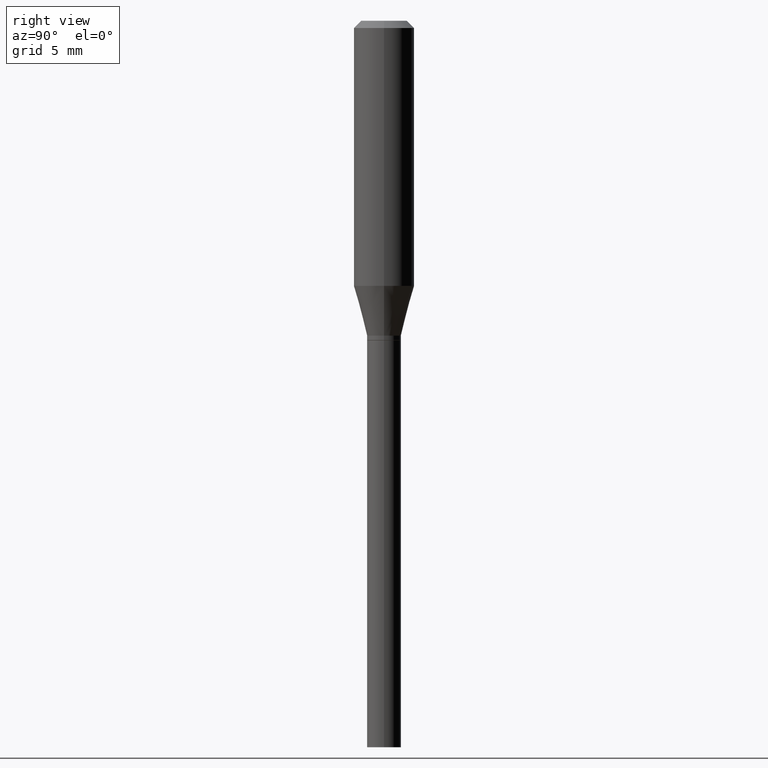
[diagram: clean part render]
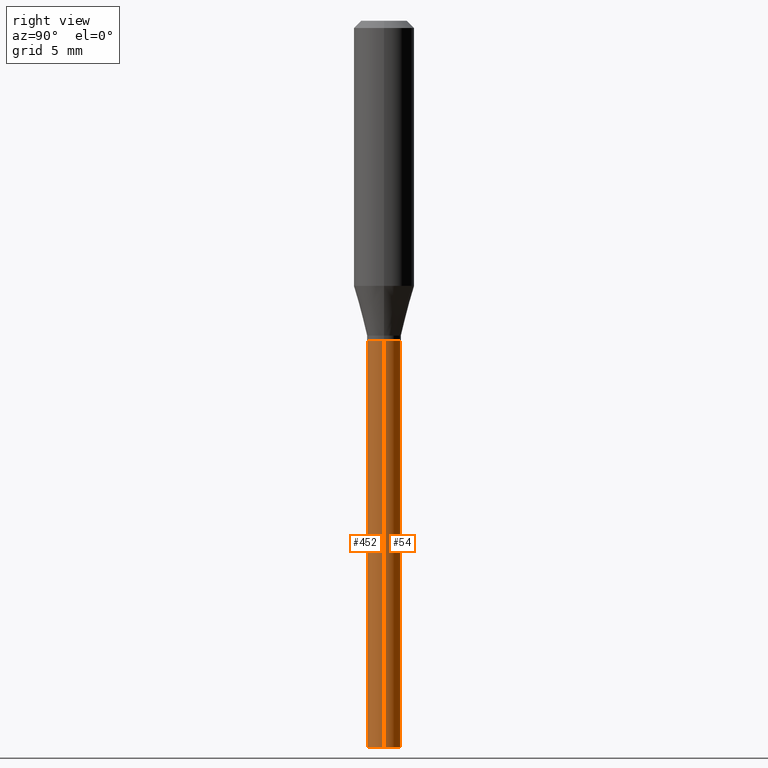
[diagram: same view with one multi-face feature highlighted, each face labeled with its STEP entity id]
A machine part, right view. The highlighted faces form ONE feature: a constant-radius fillet chain: 2 tangent blend faces with common blend radius 0.889 mm. The faces share edges in the B-rep.
Their STEP definitions:
[1] entity #452 (Cylinder):
#15 = DIRECTION ( 'NONE',  ( 1.000000000000000000, -6.982962677686265922E-15, 4.876176775795936353E-29 ) ) ;
#41 = ORIENTED_EDGE ( 'NONE', *, *, #209, .F. ) ;
#50 = DIRECTION ( 'NONE',  ( -2.445468806185136597E-29, 3.491481338843145583E-15, 1.000000000000000000 ) ) ;
#61 = VERTEX_POINT ( 'NONE', #148 ) ;
#64 = ORIENTED_EDGE ( 'NONE', *, *, #258, .F. ) ;
#75 = ORIENTED_EDGE ( 'NONE', *, *, #173, .T. ) ;
#76 = DIRECTION ( 'NONE',  ( -2.445468806185136597E-29, 3.491481338843145583E-15, 1.000000000000000000 ) ) ;
#87 = VECTOR ( 'NONE', #379, 39.37007874015748143 ) ;
#90 = CARTESIAN_POINT ( 'NONE',  ( 0.03500000000000000333, -2.444036937190193250E-16, 1.706661871528577808E-30 ) ) ;
#119 = CARTESIAN_POINT ( 'NONE',  ( 0.03500000000000000333, -5.481625701983738143E-15, -1.500000000000000222 ) ) ;
#134 = EDGE_LOOP ( 'NONE', ( #64, #75, #390, #41 ) ) ;
#148 = CARTESIAN_POINT ( 'NONE',  ( -0.03500000000000000333, -3.522109888434562701E-15, -0.6600000000000002531 ) ) ;
#164 = CARTESIAN_POINT ( 'NONE',  ( 1.614009412082190782E-29, -2.304377683636476613E-15, -0.6600000000000002531 ) ) ;
#173 = EDGE_CURVE ( 'NONE', #373, #279, #181, .T. ) ;
#177 = FACE_OUTER_BOUND ( 'NONE', #134, .T. ) ;
#181 = CIRCLE ( 'NONE', #367, 0.03500000000000000333 ) ;
#182 = DIRECTION ( 'NONE',  ( -2.445468806185136597E-29, 3.491481338843145583E-15, 1.000000000000000000 ) ) ;
#189 = EDGE_CURVE ( 'NONE', #279, #408, #309, .T. ) ;
#203 = CARTESIAN_POINT ( 'NONE',  ( -0.03500000000000000333, 2.486899575160350887E-16, -1.721627281589217108E-30 ) ) ;
#208 = CARTESIAN_POINT ( 'NONE',  ( -0.03500000000000000333, -3.522109888434562701E-15, -1.500000000000000222 ) ) ;
#209 = EDGE_CURVE ( 'NONE', #61, #408, #268, .T. ) ;
#226 = DIRECTION ( 'NONE',  ( 1.000000000000000000, -6.982962677686276966E-15, 0.000000000000000000 ) ) ;
#233 = LINE ( 'NONE', #203, #87 ) ;
#241 = CARTESIAN_POINT ( 'NONE',  ( 0.03500000000000000333, -2.548781377355495790E-15, -0.6600000000000002531 ) ) ;
#244 = AXIS2_PLACEMENT_3D ( 'NONE', #250, #182, #15 ) ;
#250 = CARTESIAN_POINT ( 'NONE',  ( 0.000000000000000000, 0.000000000000000000, 0.000000000000000000 ) ) ;
#258 = EDGE_CURVE ( 'NONE', #373, #61, #233, .T. ) ;
#268 = CIRCLE ( 'NONE', #389, 0.03500000000000000333 ) ;
#279 = VERTEX_POINT ( 'NONE', #119 ) ;
#307 = DIRECTION ( 'NONE',  ( 1.000000000000000000, -6.982962677686262766E-15, 0.000000000000000000 ) ) ;
#309 = LINE ( 'NONE', #90, #431 ) ;
#353 = DIRECTION ( 'NONE',  ( -2.445468806185136877E-29, 3.491481338843145188E-15, 1.000000000000000000 ) ) ;
#357 = CYLINDRICAL_SURFACE ( 'NONE', #244, 0.03500000000000000333 ) ;
#367 = AXIS2_PLACEMENT_3D ( 'NONE', #406, #76, #226 ) ;
#373 = VERTEX_POINT ( 'NONE', #208 ) ;
#379 = DIRECTION ( 'NONE',  ( -2.445468806185136877E-29, 3.491481338843145188E-15, 1.000000000000000000 ) ) ;
#389 = AXIS2_PLACEMENT_3D ( 'NONE', #164, #50, #307 ) ;
#390 = ORIENTED_EDGE ( 'NONE', *, *, #189, .T. ) ;
#406 = CARTESIAN_POINT ( 'NONE',  ( 3.668203209277704895E-29, -5.237222008264718177E-15, -1.500000000000000222 ) ) ;
#408 = VERTEX_POINT ( 'NONE', #241 ) ;
#431 = VECTOR ( 'NONE', #353, 39.37007874015748143 ) ;
#452 = ADVANCED_FACE ( 'NONE', ( #177 ), #357, .T. ) ;
[2] entity #54 (Cylinder):
#17 = ORIENTED_EDGE ( 'NONE', *, *, #304, .T. ) ;
#22 = CARTESIAN_POINT ( 'NONE',  ( 0.000000000000000000, 0.000000000000000000, 0.000000000000000000 ) ) ;
#26 = ORIENTED_EDGE ( 'NONE', *, *, #258, .T. ) ;
#54 = ADVANCED_FACE ( 'NONE', ( #257 ), #184, .T. ) ;
#55 = CIRCLE ( 'NONE', #231, 0.03500000000000000333 ) ;
#61 = VERTEX_POINT ( 'NONE', #148 ) ;
#85 = DIRECTION ( 'NONE',  ( -2.445468806185136597E-29, 3.491481338843145583E-15, 1.000000000000000000 ) ) ;
#87 = VECTOR ( 'NONE', #379, 39.37007874015748143 ) ;
#88 = DIRECTION ( 'NONE',  ( -2.445468806185136597E-29, 3.491481338843145583E-15, 1.000000000000000000 ) ) ;
#90 = CARTESIAN_POINT ( 'NONE',  ( 0.03500000000000000333, -2.444036937190193250E-16, 1.706661871528577808E-30 ) ) ;
#119 = CARTESIAN_POINT ( 'NONE',  ( 0.03500000000000000333, -5.481625701983738143E-15, -1.500000000000000222 ) ) ;
#144 = DIRECTION ( 'NONE',  ( -2.445468806185136597E-29, 3.491481338843145583E-15, 1.000000000000000000 ) ) ;
#148 = CARTESIAN_POINT ( 'NONE',  ( -0.03500000000000000333, -3.522109888434562701E-15, -0.6600000000000002531 ) ) ;
#184 = CYLINDRICAL_SURFACE ( 'NONE', #322, 0.03500000000000000333 ) ;
#189 = EDGE_CURVE ( 'NONE', #279, #408, #309, .T. ) ;
#203 = CARTESIAN_POINT ( 'NONE',  ( -0.03500000000000000333, 2.486899575160350887E-16, -1.721627281589217108E-30 ) ) ;
#208 = CARTESIAN_POINT ( 'NONE',  ( -0.03500000000000000333, -3.522109888434562701E-15, -1.500000000000000222 ) ) ;
#231 = AXIS2_PLACEMENT_3D ( 'NONE', #314, #88, #267 ) ;
#233 = LINE ( 'NONE', #203, #87 ) ;
#241 = CARTESIAN_POINT ( 'NONE',  ( 0.03500000000000000333, -2.548781377355495790E-15, -0.6600000000000002531 ) ) ;
#257 = FACE_OUTER_BOUND ( 'NONE', #420, .T. ) ;
#258 = EDGE_CURVE ( 'NONE', #373, #61, #233, .T. ) ;
#262 = EDGE_CURVE ( 'NONE', #408, #61, #55, .T. ) ;
#267 = DIRECTION ( 'NONE',  ( 1.000000000000000000, -6.982962677686262766E-15, 0.000000000000000000 ) ) ;
#274 = AXIS2_PLACEMENT_3D ( 'NONE', #413, #85, #387 ) ;
#279 = VERTEX_POINT ( 'NONE', #119 ) ;
#301 = ORIENTED_EDGE ( 'NONE', *, *, #189, .F. ) ;
#304 = EDGE_CURVE ( 'NONE', #279, #373, #444, .T. ) ;
#309 = LINE ( 'NONE', #90, #431 ) ;
#314 = CARTESIAN_POINT ( 'NONE',  ( 1.614009412082190782E-29, -2.304377683636476613E-15, -0.6600000000000002531 ) ) ;
#322 = AXIS2_PLACEMENT_3D ( 'NONE', #22, #144, #401 ) ;
#353 = DIRECTION ( 'NONE',  ( -2.445468806185136877E-29, 3.491481338843145188E-15, 1.000000000000000000 ) ) ;
#373 = VERTEX_POINT ( 'NONE', #208 ) ;
#379 = DIRECTION ( 'NONE',  ( -2.445468806185136877E-29, 3.491481338843145188E-15, 1.000000000000000000 ) ) ;
#387 = DIRECTION ( 'NONE',  ( 1.000000000000000000, -6.982962677686276966E-15, 0.000000000000000000 ) ) ;
#397 = ORIENTED_EDGE ( 'NONE', *, *, #262, .F. ) ;
#401 = DIRECTION ( 'NONE',  ( 1.000000000000000000, -6.982962677686265922E-15, 4.876176775795936353E-29 ) ) ;
#408 = VERTEX_POINT ( 'NONE', #241 ) ;
#413 = CARTESIAN_POINT ( 'NONE',  ( 3.668203209277704895E-29, -5.237222008264718177E-15, -1.500000000000000222 ) ) ;
#420 = EDGE_LOOP ( 'NONE', ( #17, #26, #397, #301 ) ) ;
#431 = VECTOR ( 'NONE', #353, 39.37007874015748143 ) ;
#444 = CIRCLE ( 'NONE', #274, 0.03500000000000000333 ) ;